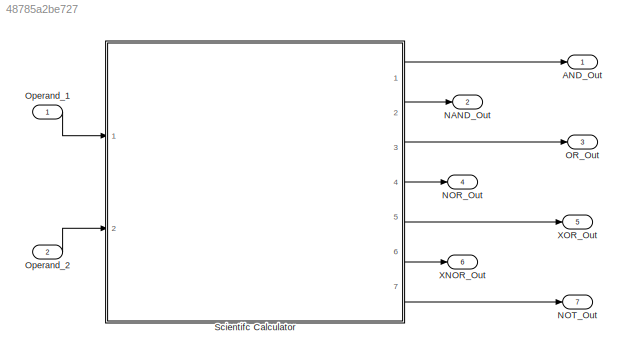
MODEL slx_48785a2be727
KIND model
CONFIG AbsTol = auto
CONFIG EnableMultiTasking = off
CONFIG FixedStep = auto
CONFIG MaxStep = auto
CONFIG MinStep = auto
CONFIG RelTol = 1e-3
CONFIG SampleTimeConstraint = Unconstrained
CONFIG Solver = FixedStepDiscrete
CONFIG SolverName = FixedStepDiscrete
CONFIG StartTime = 0.0
CONFIG StopTime = 10.0
BLOCK [Outport] AND_Out
  IconDisplay = Port number
BLOCK [Outport] NAND_Out
  IconDisplay = Port number
  Port = 2
BLOCK [Outport] NOR_Out
  IconDisplay = Port number
  Port = 4
BLOCK [Outport] NOT_Out
  IconDisplay = Port number
  Port = 7
BLOCK [Outport] OR_Out
  IconDisplay = Port number
  Port = 3
BLOCK [Inport] Operand_1
  IconDisplay = Port number
  OutDataTypeStr = uint8
BLOCK [Inport] Operand_2
  IconDisplay = Port number
  OutDataTypeStr = uint8
  Port = 2
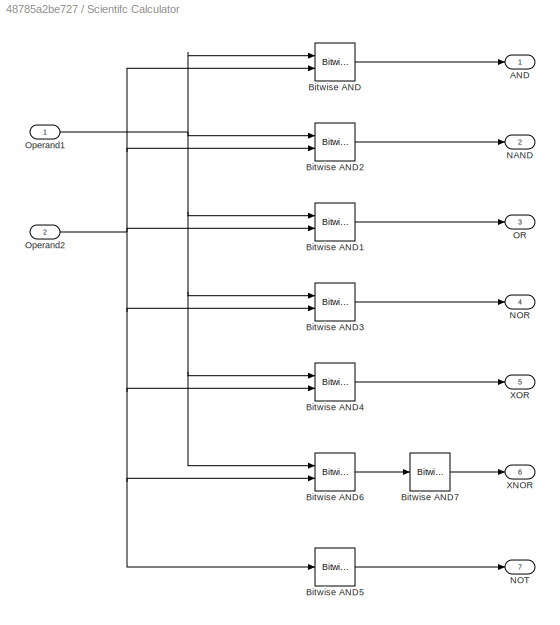
BLOCK [SubSystem] Scientifc Calculator
  Ports = [2, 7]
  RequestExecContextInheritance = off
  Variant = off
BLOCK [Outport] Scientifc Calculator/AND
  IconDisplay = Port number
  OutDataTypeStr = uint8
BLOCK [Reference] Scientifc Calculator/Bitwise AND  REF=simulink/Logic and Bit
Operations/Bitwise
Operator
  Ports = [2, 1]
  SourceBlock = simulink/Logic and Bit\nOperations/Bitwise\nOperator
  SourceType = Bitwise Operator
BLOCK [Reference] Scientifc Calculator/Bitwise AND1  REF=simulink/Logic and Bit
Operations/Bitwise
Operator
  Ports = [2, 1]
  SourceBlock = simulink/Logic and Bit\nOperations/Bitwise\nOperator
  SourceType = Bitwise Operator
BLOCK [Reference] Scientifc Calculator/Bitwise AND2  REF=simulink/Logic and Bit
Operations/Bitwise
Operator
  Ports = [2, 1]
  SourceBlock = simulink/Logic and Bit\nOperations/Bitwise\nOperator
  SourceType = Bitwise Operator
BLOCK [Reference] Scientifc Calculator/Bitwise AND3  REF=simulink/Logic and Bit
Operations/Bitwise
Operator
  Ports = [2, 1]
  SourceBlock = simulink/Logic and Bit\nOperations/Bitwise\nOperator
  SourceType = Bitwise Operator
BLOCK [Reference] Scientifc Calculator/Bitwise AND4  REF=simulink/Logic and Bit
Operations/Bitwise
Operator
  Ports = [2, 1]
  SourceBlock = simulink/Logic and Bit\nOperations/Bitwise\nOperator
  SourceType = Bitwise Operator
BLOCK [Reference] Scientifc Calculator/Bitwise AND5  REF=simulink/Logic and Bit
Operations/Bitwise
Operator
  Ports = [1, 1]
  SourceBlock = simulink/Logic and Bit\nOperations/Bitwise\nOperator
  SourceType = Bitwise Operator
BLOCK [Reference] Scientifc Calculator/Bitwise AND6  REF=simulink/Logic and Bit
Operations/Bitwise
Operator
  Ports = [2, 1]
  SourceBlock = simulink/Logic and Bit\nOperations/Bitwise\nOperator
  SourceType = Bitwise Operator
BLOCK [Reference] Scientifc Calculator/Bitwise AND7  REF=simulink/Logic and Bit
Operations/Bitwise
Operator
  Ports = [1, 1]
  SourceBlock = simulink/Logic and Bit\nOperations/Bitwise\nOperator
  SourceType = Bitwise Operator
BLOCK [Outport] Scientifc Calculator/NAND
  IconDisplay = Port number
  OutDataTypeStr = uint8
  Port = 2
BLOCK [Outport] Scientifc Calculator/NOR
  IconDisplay = Port number
  OutDataTypeStr = uint8
  Port = 4
BLOCK [Outport] Scientifc Calculator/NOT
  IconDisplay = Port number
  OutDataTypeStr = uint8
  Port = 7
BLOCK [Outport] Scientifc Calculator/OR
  IconDisplay = Port number
  OutDataTypeStr = uint8
  Port = 3
BLOCK [Inport] Scientifc Calculator/Operand1
  IconDisplay = Port number
  OutDataTypeStr = uint8
BLOCK [Inport] Scientifc Calculator/Operand2
  IconDisplay = Port number
  OutDataTypeStr = uint8
  Port = 2
BLOCK [Outport] Scientifc Calculator/XNOR
  IconDisplay = Port number
  OutDataTypeStr = uint8
  Port = 6
BLOCK [Outport] Scientifc Calculator/XOR
  IconDisplay = Port number
  OutDataTypeStr = uint8
  Port = 5
BLOCK [Outport] XNOR_Out
  IconDisplay = Port number
  Port = 6
BLOCK [Outport] XOR_Out
  IconDisplay = Port number
  Port = 5
LINE Operand_1:1 -> Scientifc Calculator:1
LINE Operand_2:1 -> Scientifc Calculator:2
LINE Scientifc Calculator/Bitwise AND1:1 -> Scientifc Calculator/OR:1
LINE Scientifc Calculator/Bitwise AND2:1 -> Scientifc Calculator/NAND:1
LINE Scientifc Calculator/Bitwise AND3:1 -> Scientifc Calculator/NOR:1
LINE Scientifc Calculator/Bitwise AND4:1 -> Scientifc Calculator/XOR:1
LINE Scientifc Calculator/Bitwise AND5:1 -> Scientifc Calculator/NOT:1
LINE Scientifc Calculator/Bitwise AND6:1 -> Scientifc Calculator/Bitwise AND7:1
LINE Scientifc Calculator/Bitwise AND7:1 -> Scientifc Calculator/XNOR:1
LINE Scientifc Calculator/Bitwise AND:1 -> Scientifc Calculator/AND:1
NET Scientifc Calculator/Operand1:1 -> Scientifc Calculator/Bitwise AND1:1, Scientifc Calculator/Bitwise AND2:1, Scientifc Calculator/Bitwise AND3:1, Scientifc Calculator/Bitwise AND4:1, Scientifc Calculator/Bitwise AND6:1, Scientifc Calculator/Bitwise AND:1
NET Scientifc Calculator/Operand2:1 -> Scientifc Calculator/Bitwise AND1:2, Scientifc Calculator/Bitwise AND2:2, Scientifc Calculator/Bitwise AND3:2, Scientifc Calculator/Bitwise AND4:2, Scientifc Calculator/Bitwise AND5:1, Scientifc Calculator/Bitwise AND6:2, Scientifc Calculator/Bitwise AND:2
LINE Scientifc Calculator:1 -> AND_Out:1
LINE Scientifc Calculator:2 -> NAND_Out:1
LINE Scientifc Calculator:3 -> OR_Out:1
LINE Scientifc Calculator:4 -> NOR_Out:1
LINE Scientifc Calculator:5 -> XOR_Out:1
LINE Scientifc Calculator:6 -> XNOR_Out:1
LINE Scientifc Calculator:7 -> NOT_Out:1
note: NET lines group one-source signal fan-out (src -> all destinations, sorted); 1:1 wires keep LINE
